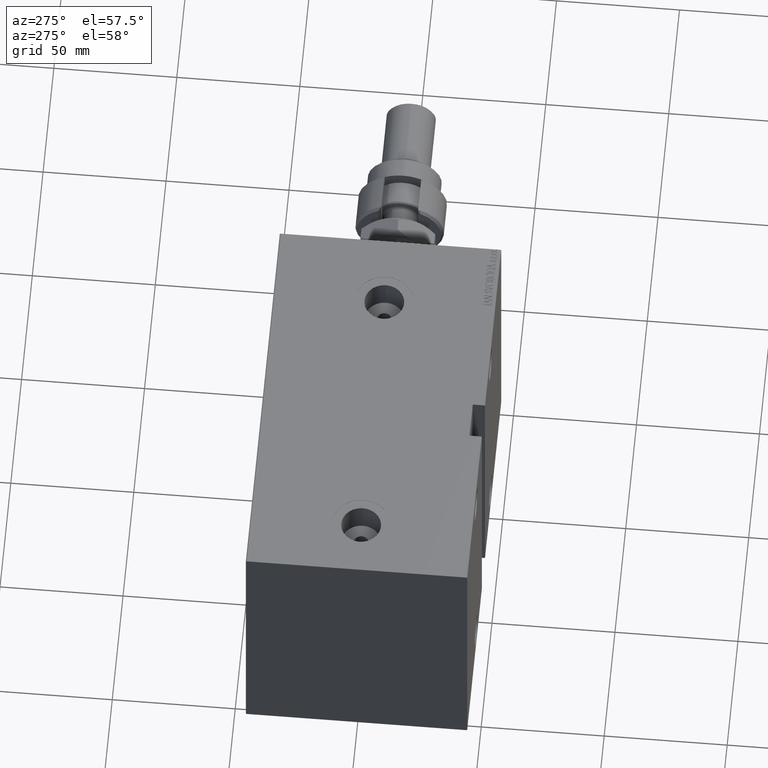
[diagram: clean part render]
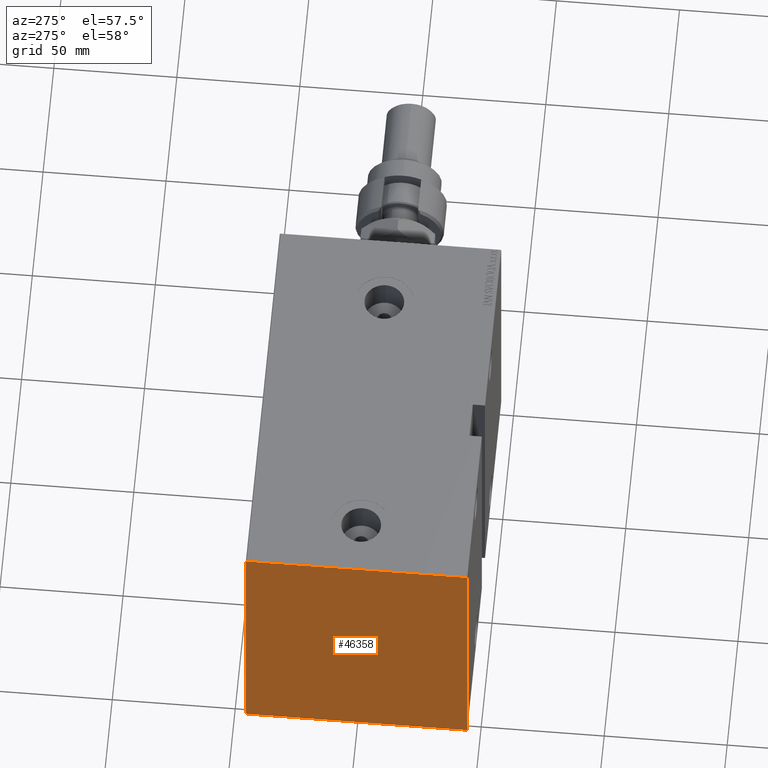
[diagram: same view with one face highlighted and labeled with its STEP entity id]
A machine part, auxiliary view. The second image highlights one B-rep face of the part: STEP entity #46358.
In plain terms, the highlighted planar face has unit normal (-1, 0, 0).
Its self-contained STEP definition (entity closure, byte-faithful):
#5201 = CARTESIAN_POINT ( 'NONE',  ( 158.0000000000000000, -45.00000000000000000, 57.49999999999999289 ) ) ;
#5861 = CARTESIAN_POINT ( 'NONE',  ( 158.0000000000000000, -45.00000000000000000, -57.20000000000003126 ) ) ;
#5920 = LINE ( 'NONE', #38860, #35411 ) ;
#6287 = DIRECTION ( 'NONE',  ( -0.000000000000000000, 0.7071067811865474617, -0.7071067811865474617 ) ) ;
#7072 = EDGE_CURVE ( 'NONE', #11190, #35529, #26245, .T. ) ;
#7373 = VERTEX_POINT ( 'NONE', #30009 ) ;
#8939 = ORIENTED_EDGE ( 'NONE', *, *, #16838, .T. ) ;
#11190 = VERTEX_POINT ( 'NONE', #31262 ) ;
#11710 = ORIENTED_EDGE ( 'NONE', *, *, #47238, .T. ) ;
#12616 = DIRECTION ( 'NONE',  ( 0.000000000000000000, -1.000000000000000000, -2.312964634635742957E-16 ) ) ;
#13720 = ORIENTED_EDGE ( 'NONE', *, *, #14351, .T. ) ;
#14351 = EDGE_CURVE ( 'NONE', #38854, #11190, #45069, .T. ) ;
#15597 = VERTEX_POINT ( 'NONE', #44415 ) ;
#16248 = DIRECTION ( 'NONE',  ( -0.000000000000000000, -0.7071067811865393571, 0.7071067811865556774 ) ) ;
#16479 = VECTOR ( 'NONE', #41204, 1000.000000000000114 ) ;
#16629 = CARTESIAN_POINT ( 'NONE',  ( 158.0000000000000000, 45.00000000000001421, -57.20000000000004547 ) ) ;
#16745 = CARTESIAN_POINT ( 'NONE',  ( 158.0000000000000000, 45.00000000000001421, -57.50000000000000711 ) ) ;
#16838 = EDGE_CURVE ( 'NONE', #45949, #38854, #41257, .T. ) ;
#17177 = PLANE ( 'NONE',  #37072 ) ;
#17532 = CARTESIAN_POINT ( 'NONE',  ( 158.0000000000000000, -51.10000000000002984, -51.10000000000002984 ) ) ;
#18398 = ORIENTED_EDGE ( 'NONE', *, *, #31681, .T. ) ;
#19573 = CARTESIAN_POINT ( 'NONE',  ( 158.0000000000000000, 45.00000000000001421, 57.50000000000001421 ) ) ;
#19835 = LINE ( 'NONE', #34371, #43199 ) ;
#20728 = DIRECTION ( 'NONE',  ( 0.000000000000000000, 0.000000000000000000, -1.000000000000000000 ) ) ;
#22451 = CARTESIAN_POINT ( 'NONE',  ( 158.0000000000000000, -45.00000000000000000, -57.50000000000002132 ) ) ;
#22992 = EDGE_CURVE ( 'NONE', #35529, #30653, #5920, .T. ) ;
#23147 = DIRECTION ( 'NONE',  ( 0.000000000000000000, 1.000000000000000000, 1.541976423090495140E-16 ) ) ;
#24025 = LINE ( 'NONE', #26650, #16479 ) ;
#25272 = CARTESIAN_POINT ( 'NONE',  ( 158.0000000000000000, 0.000000000000000000, 0.000000000000000000 ) ) ;
#26050 = VECTOR ( 'NONE', #23147, 1000.000000000000000 ) ;
#26245 = LINE ( 'NONE', #22451, #26050 ) ;
#26650 = CARTESIAN_POINT ( 'NONE',  ( 158.0000000000000000, -51.09999999999996589, 51.09999999999996589 ) ) ;
#28217 = EDGE_CURVE ( 'NONE', #30653, #7373, #45612, .T. ) ;
#28324 = VECTOR ( 'NONE', #20728, 1000.000000000000000 ) ;
#28592 = DIRECTION ( 'NONE',  ( -0.000000000000000000, 0.7071067811865474617, 0.7071067811865474617 ) ) ;
#28853 = FACE_OUTER_BOUND ( 'NONE', #39859, .T. ) ;
#29354 = ORIENTED_EDGE ( 'NONE', *, *, #30675, .T. ) ;
#30009 = CARTESIAN_POINT ( 'NONE',  ( 158.0000000000000000, 45.00000000000001421, 57.19999999999998863 ) ) ;
#30653 = VERTEX_POINT ( 'NONE', #16629 ) ;
#30675 = EDGE_CURVE ( 'NONE', #15597, #45949, #24025, .T. ) ;
#31262 = CARTESIAN_POINT ( 'NONE',  ( 158.0000000000000000, -44.70000000000003126, -57.50000000000002132 ) ) ;
#31681 = EDGE_CURVE ( 'NONE', #38002, #15597, #37691, .T. ) ;
#32667 = DIRECTION ( 'NONE',  ( -0.000000000000000000, 0.000000000000000000, -1.000000000000000000 ) ) ;
#33791 = ORIENTED_EDGE ( 'NONE', *, *, #28217, .T. ) ;
#34371 = CARTESIAN_POINT ( 'NONE',  ( 158.0000000000000000, 51.10000000000053433, 51.09999999999935483 ) ) ;
#35411 = VECTOR ( 'NONE', #28592, 1000.000000000000114 ) ;
#35529 = VERTEX_POINT ( 'NONE', #45428 ) ;
#37072 = AXIS2_PLACEMENT_3D ( 'NONE', #25272, #39825, #32667 ) ;
#37080 = VECTOR ( 'NONE', #46310, 1000.000000000000000 ) ;
#37343 = ORIENTED_EDGE ( 'NONE', *, *, #22992, .T. ) ;
#37691 = LINE ( 'NONE', #19573, #45452 ) ;
#38002 = VERTEX_POINT ( 'NONE', #44065 ) ;
#38854 = VERTEX_POINT ( 'NONE', #5861 ) ;
#38860 = CARTESIAN_POINT ( 'NONE',  ( 158.0000000000000000, 51.10000000000002984, -51.10000000000002984 ) ) ;
#39825 = DIRECTION ( 'NONE',  ( 1.000000000000000000, 0.000000000000000000, -0.000000000000000000 ) ) ;
#39859 = EDGE_LOOP ( 'NONE', ( #42472, #37343, #33791, #11710, #18398, #29354, #8939, #13720 ) ) ;
#41204 = DIRECTION ( 'NONE',  ( -0.000000000000000000, -0.7071067811865474617, -0.7071067811865474617 ) ) ;
#41257 = LINE ( 'NONE', #5201, #28324 ) ;
#42051 = CARTESIAN_POINT ( 'NONE',  ( 158.0000000000000000, -45.00000000000000000, 57.19999999999994600 ) ) ;
#42472 = ORIENTED_EDGE ( 'NONE', *, *, #7072, .T. ) ;
#43199 = VECTOR ( 'NONE', #16248, 1000.000000000000000 ) ;
#44065 = CARTESIAN_POINT ( 'NONE',  ( 158.0000000000000000, 44.70000000000001705, 57.50000000000001421 ) ) ;
#44415 = CARTESIAN_POINT ( 'NONE',  ( 158.0000000000000000, -44.69999999999991758, 57.49999999999999289 ) ) ;
#45069 = LINE ( 'NONE', #17532, #46652 ) ;
#45428 = CARTESIAN_POINT ( 'NONE',  ( 158.0000000000000000, 44.70000000000001705, -57.50000000000000711 ) ) ;
#45452 = VECTOR ( 'NONE', #12616, 1000.000000000000000 ) ;
#45612 = LINE ( 'NONE', #16745, #37080 ) ;
#45949 = VERTEX_POINT ( 'NONE', #42051 ) ;
#46310 = DIRECTION ( 'NONE',  ( 0.000000000000000000, 0.000000000000000000, 1.000000000000000000 ) ) ;
#46358 = ADVANCED_FACE ( 'NONE', ( #28853 ), #17177, .T. ) ;
#46652 = VECTOR ( 'NONE', #6287, 1000.000000000000114 ) ;
#47238 = EDGE_CURVE ( 'NONE', #7373, #38002, #19835, .T. ) ;